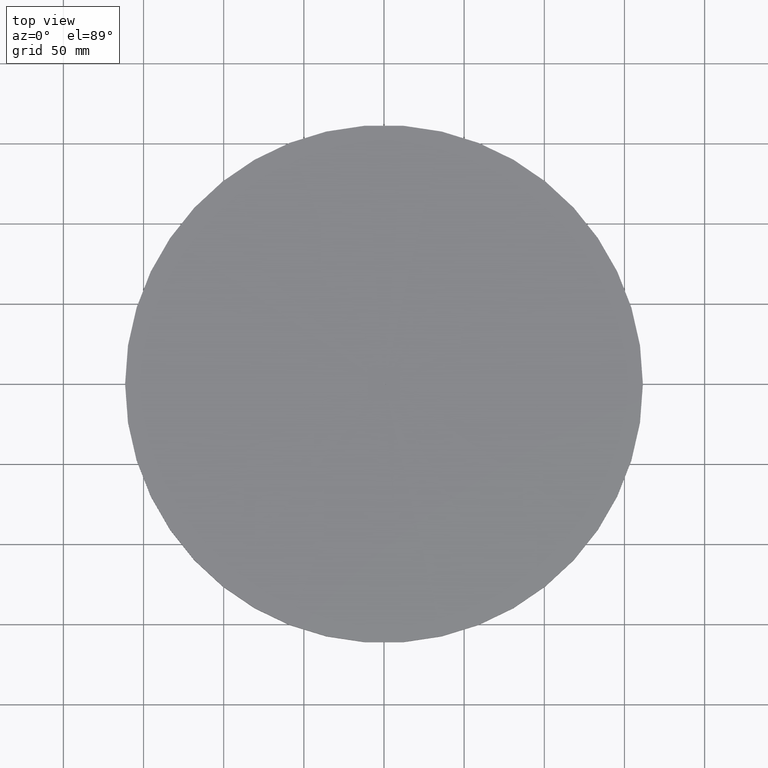
[diagram: clean part render]
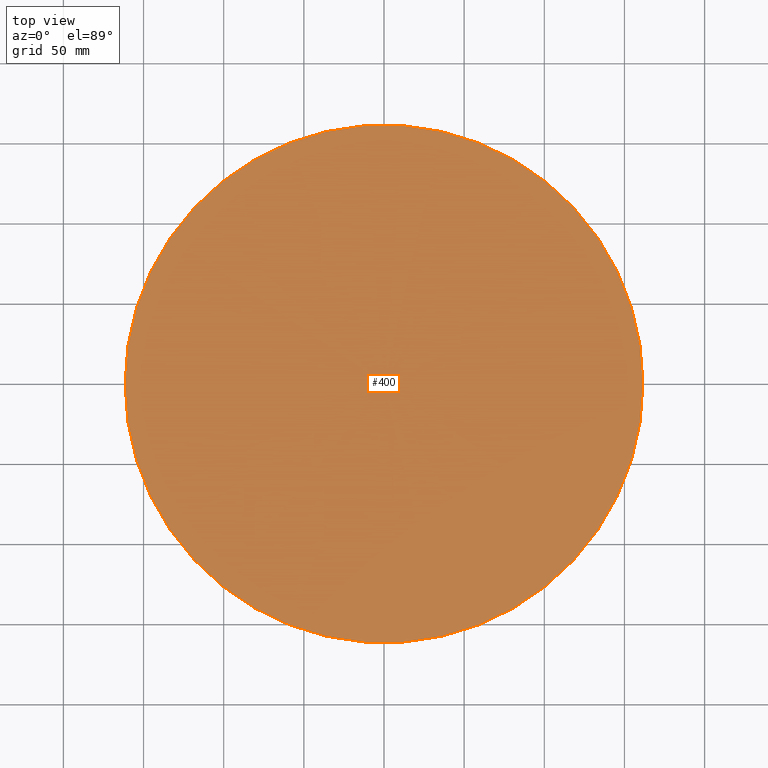
[diagram: same view with one face highlighted and labeled with its STEP entity id]
A machine part, top view. The second image highlights one B-rep face of the part: STEP entity #400.
In plain terms, the highlighted planar face has unit normal (0, 0, 1).
Its self-contained STEP definition (entity closure, byte-faithful):
#2 = VERTEX_POINT ( 'NONE', #1546 ) ;
#6 = CARTESIAN_POINT ( 'NONE',  ( 0.000000000000000000, 0.000000000000000000, 10.00000000000000000 ) ) ;
#31 = EDGE_CURVE ( 'NONE', #102, #1234, #1639, .T. ) ;
#66 = DIRECTION ( 'NONE',  ( 0.000000000000000000, 0.000000000000000000, 1.000000000000000000 ) ) ;
#102 = VERTEX_POINT ( 'NONE', #1175 ) ;
#125 = DIRECTION ( 'NONE',  ( 1.000000000000000000, 0.000000000000000000, 0.000000000000000000 ) ) ;
#161 = CARTESIAN_POINT ( 'NONE',  ( 0.000000000000000000, 0.000000000000000000, 10.00000000000000000 ) ) ;
#290 = EDGE_LOOP ( 'NONE', ( #2076, #1698 ) ) ;
#356 = DIRECTION ( 'NONE',  ( 1.000000000000000000, 0.000000000000000000, 0.000000000000000000 ) ) ;
#395 = FACE_BOUND ( 'NONE', #1136, .T. ) ;
#400 = ADVANCED_FACE ( 'NONE', ( #395, #974 ), #1348, .T. ) ;
#539 = DIRECTION ( 'NONE',  ( 1.000000000000000000, 0.000000000000000000, 0.000000000000000000 ) ) ;
#551 = CARTESIAN_POINT ( 'NONE',  ( 0.000000000000000000, 0.000000000000000000, 10.00000000000000000 ) ) ;
#558 = CARTESIAN_POINT ( 'NONE',  ( 0.000000000000000000, 0.000000000000000000, 10.00000000000000000 ) ) ;
#731 = CIRCLE ( 'NONE', #2132, 1.000000000000000000 ) ;
#835 = DIRECTION ( 'NONE',  ( 1.000000000000000000, 0.000000000000000000, 0.000000000000000000 ) ) ;
#916 = DIRECTION ( 'NONE',  ( 0.000000000000000000, 0.000000000000000000, 1.000000000000000000 ) ) ;
#974 = FACE_OUTER_BOUND ( 'NONE', #290, .T. ) ;
#1136 = EDGE_LOOP ( 'NONE', ( #2479, #2062 ) ) ;
#1166 = CIRCLE ( 'NONE', #1284, 1.000000000000000000 ) ;
#1173 = CARTESIAN_POINT ( 'NONE',  ( -161.5000000000000000, 0.000000000000000000, 10.00000000000000000 ) ) ;
#1175 = CARTESIAN_POINT ( 'NONE',  ( 161.5000000000000000, 1.977804580622975483E-14, 10.00000000000000000 ) ) ;
#1196 = AXIS2_PLACEMENT_3D ( 'NONE', #6, #1964, #1536 ) ;
#1211 = CIRCLE ( 'NONE', #2011, 161.5000000000000000 ) ;
#1234 = VERTEX_POINT ( 'NONE', #1173 ) ;
#1268 = DIRECTION ( 'NONE',  ( 0.000000000000000000, 0.000000000000000000, 1.000000000000000000 ) ) ;
#1284 = AXIS2_PLACEMENT_3D ( 'NONE', #161, #1268, #125 ) ;
#1316 = AXIS2_PLACEMENT_3D ( 'NONE', #558, #1699, #356 ) ;
#1345 = VERTEX_POINT ( 'NONE', #1936 ) ;
#1348 = PLANE ( 'NONE',  #1196 ) ;
#1536 = DIRECTION ( 'NONE',  ( 1.000000000000000000, 0.000000000000000000, -0.000000000000000000 ) ) ;
#1546 = CARTESIAN_POINT ( 'NONE',  ( 1.000000000000000000, 1.224646799147353207E-16, 10.00000000000000000 ) ) ;
#1639 = CIRCLE ( 'NONE', #1316, 161.5000000000000000 ) ;
#1698 = ORIENTED_EDGE ( 'NONE', *, *, #31, .T. ) ;
#1699 = DIRECTION ( 'NONE',  ( 0.000000000000000000, 0.000000000000000000, 1.000000000000000000 ) ) ;
#1730 = EDGE_CURVE ( 'NONE', #1234, #102, #1211, .T. ) ;
#1936 = CARTESIAN_POINT ( 'NONE',  ( -1.000000000000000000, 0.000000000000000000, 10.00000000000000000 ) ) ;
#1964 = DIRECTION ( 'NONE',  ( 0.000000000000000000, 0.000000000000000000, 1.000000000000000000 ) ) ;
#1972 = CARTESIAN_POINT ( 'NONE',  ( 0.000000000000000000, 0.000000000000000000, 10.00000000000000000 ) ) ;
#2011 = AXIS2_PLACEMENT_3D ( 'NONE', #551, #916, #539 ) ;
#2062 = ORIENTED_EDGE ( 'NONE', *, *, #2193, .F. ) ;
#2070 = EDGE_CURVE ( 'NONE', #1345, #2, #731, .T. ) ;
#2076 = ORIENTED_EDGE ( 'NONE', *, *, #1730, .T. ) ;
#2132 = AXIS2_PLACEMENT_3D ( 'NONE', #1972, #66, #835 ) ;
#2193 = EDGE_CURVE ( 'NONE', #2, #1345, #1166, .T. ) ;
#2479 = ORIENTED_EDGE ( 'NONE', *, *, #2070, .F. ) ;